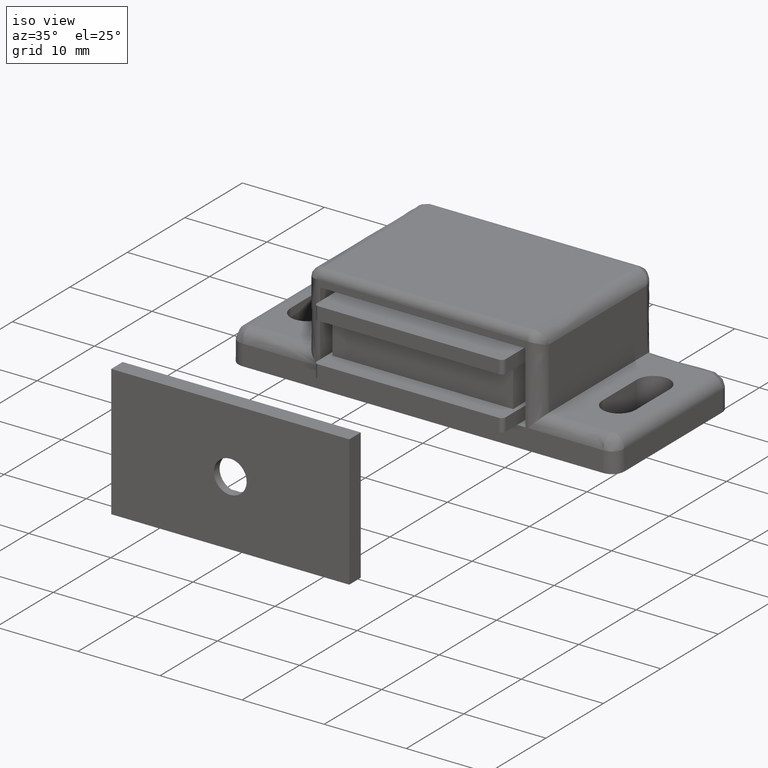
[diagram: clean part render]
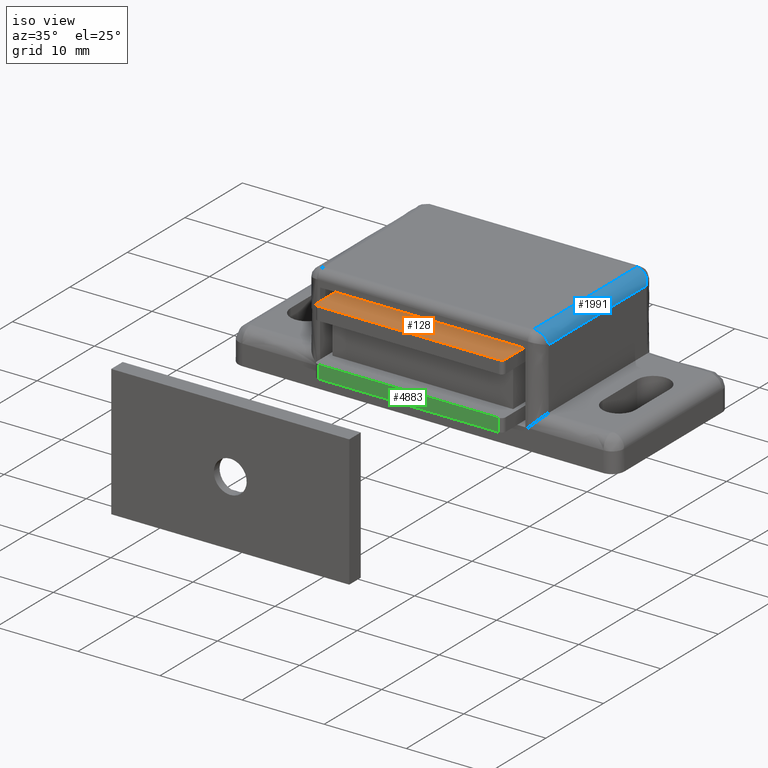
[diagram: same view with three faces highlighted in distinct colors, each labeled with its STEP entity id]
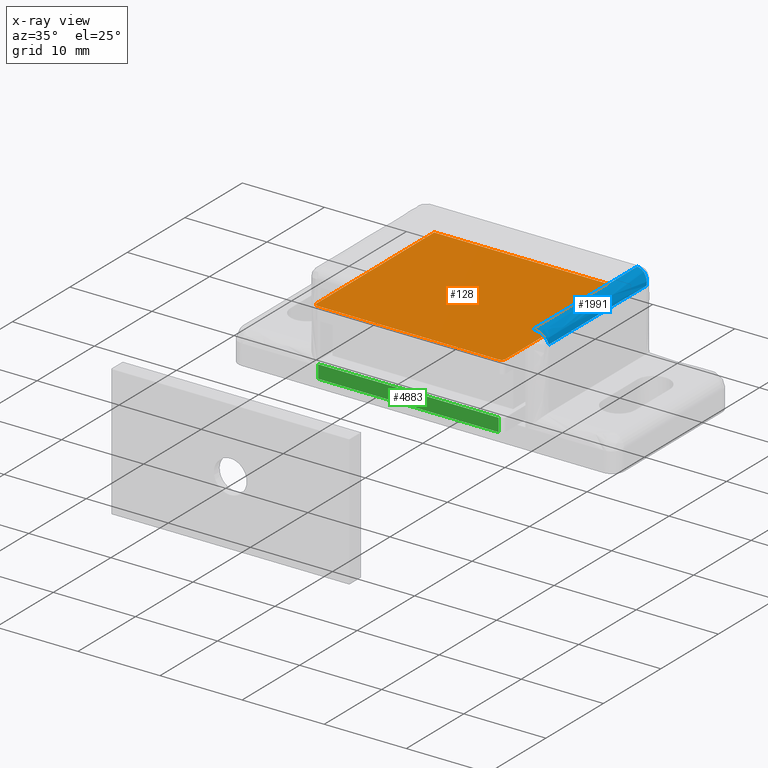
[diagram: x-ray of the same camera — body ghosted, the three highlighted faces saturated]
A machine part, iso view with three faces highlighted in distinct colors.
The next image is the same camera in x-ray (body ghosted, the three faces saturated) — at least one of them is partly hidden behind the body in this view.
Their STEP definitions:

[orange] entity #128 — the highlighted face is a freeform B-spline surface patch.
#67=CARTESIAN_POINT('',(-12.648849955421539,-23.543955059391742,10.500015155273330));
#68=CARTESIAN_POINT('',(12.648850572329611,-23.543955059391742,10.500015155273330));
#69=CARTESIAN_POINT('',(-12.648849955421539,-0.556042380026522,10.500015155273330));
#70=CARTESIAN_POINT('',(12.648850572329611,-0.556042380026522,10.500015155273330));
#71=B_SPLINE_SURFACE_WITH_KNOTS('',1,1,((#67,#69),(#68,#70)),.UNSPECIFIED.,.F.,.F.,.U.,(2,2),(2,2),(0.0,25.297700527751150),(0.0,22.987912679365220),.UNSPECIFIED.);
#72=CARTESIAN_POINT('',(11.500000000000000,-1.599998000000000,10.500015155273370));
#73=VERTEX_POINT('',#72);
#74=CARTESIAN_POINT('',(11.500000000000000,-22.0,10.500015155273370));
#75=VERTEX_POINT('',#74);
#76=CARTESIAN_POINT('',(11.500000000000000,-1.599998000000000,10.500015155273370));
#77=CARTESIAN_POINT('',(11.500000000000000,-22.0,10.500015155273370));
#78=QUASI_UNIFORM_CURVE('',1,(#76,#77),.UNSPECIFIED.,.F.,.U.);
#79=EDGE_CURVE('',#73,#75,#78,.T.);
#80=ORIENTED_EDGE('',*,*,#79,.F.);
#81=CARTESIAN_POINT('',(-11.500000000000000,-1.599998000000000,10.500015155273370));
#82=VERTEX_POINT('',#81);
#83=CARTESIAN_POINT('',(-11.500000000000000,-1.599998000000000,10.500015155273370));
#84=CARTESIAN_POINT('',(11.500000000000000,-1.599998000000000,10.500015155273370));
#85=QUASI_UNIFORM_CURVE('',1,(#83,#84),.UNSPECIFIED.,.F.,.U.);
#86=EDGE_CURVE('',#82,#73,#85,.T.);
#87=ORIENTED_EDGE('',*,*,#86,.F.);
#88=CARTESIAN_POINT('',(-11.500000000000000,-21.999999834193751,10.500015155273370));
#89=VERTEX_POINT('',#88);
#90=CARTESIAN_POINT('',(-11.500000000000000,-21.999999834193751,10.500015155273370));
#91=CARTESIAN_POINT('',(-11.500000000000000,-1.599998000000000,10.500015155273370));
#92=QUASI_UNIFORM_CURVE('',1,(#90,#91),.UNSPECIFIED.,.F.,.U.);
#93=EDGE_CURVE('',#89,#82,#92,.T.);
#94=ORIENTED_EDGE('',*,*,#93,.F.);
#95=CARTESIAN_POINT('',(-11.0,-22.500000000000000,10.500015155273370));
#96=VERTEX_POINT('',#95);
#97=CARTESIAN_POINT('',(-11.0,-22.500000000000000,10.500015155273370));
#98=CARTESIAN_POINT('',(-11.065456960281120,-22.500067458025828,10.500015155273370));
#99=CARTESIAN_POINT('',(-11.184041596524731,-22.476367570200289,10.500015155273370));
#100=CARTESIAN_POINT('',(-11.314526201736189,-22.395946098429249,10.500015155273370));
#101=CARTESIAN_POINT('',(-11.413749183329390,-22.291751328978219,10.500015155273370));
#102=CARTESIAN_POINT('',(-11.482226392474409,-22.163621596878102,10.500015155273390));
#103=CARTESIAN_POINT('',(-11.500024074725429,-22.053178287199390,10.500015155273349));
#104=CARTESIAN_POINT('',(-11.500000000000000,-21.999999834193751,10.500015155273370));
#105=B_SPLINE_CURVE_WITH_KNOTS('',3,(#97,#98,#99,#100,#101,#102,#103,#104),.UNSPECIFIED.,.F.,.U.,(4,1,1,1,1,4),(0.000000108771553,0.196355159770080,0.355894782566613,0.454062625200847,0.625881702589922,0.785418038003662),.UNSPECIFIED.);
#106=EDGE_CURVE('',#96,#89,#105,.T.);
#107=ORIENTED_EDGE('',*,*,#106,.F.);
#108=CARTESIAN_POINT('',(10.999999738200600,-22.500000000000000,10.500015155273370));
#109=VERTEX_POINT('',#108);
#110=CARTESIAN_POINT('',(10.999999738200600,-22.500000000000000,10.500015155273370));
#111=CARTESIAN_POINT('',(-11.0,-22.500000000000000,10.500015155273370));
#112=QUASI_UNIFORM_CURVE('',1,(#110,#111),.UNSPECIFIED.,.F.,.U.);
#113=EDGE_CURVE('',#109,#96,#112,.T.);
#114=ORIENTED_EDGE('',*,*,#113,.F.);
#115=CARTESIAN_POINT('',(11.500000000000000,-22.0,10.500015155273370));
#116=CARTESIAN_POINT('',(11.500069079991080,-22.065465084910041,10.500015155273379));
#117=CARTESIAN_POINT('',(11.480429810925060,-22.163573645632830,10.500015155273370));
#118=CARTESIAN_POINT('',(11.408744263883410,-22.297715740052720,10.500015155273379));
#119=CARTESIAN_POINT('',(11.315699710927570,-22.397883782226490,10.500015155273370));
#120=CARTESIAN_POINT('',(11.171777584930510,-22.479403591828309,10.500015155273379));
#121=CARTESIAN_POINT('',(11.061364516684881,-22.500053660265468,10.500015155273349));
#122=CARTESIAN_POINT('',(10.999999738200600,-22.500000000000000,10.500015155273370));
#123=B_SPLINE_CURVE_WITH_KNOTS('',3,(#115,#116,#117,#118,#119,#120,#121,#122),.UNSPECIFIED.,.F.,.U.,(4,1,1,1,1,4),(0.000000108774715,0.196355183772896,0.294537850330567,0.454062680699287,0.601336828649441,0.785418134004014),.UNSPECIFIED.);
#124=EDGE_CURVE('',#75,#109,#123,.T.);
#125=ORIENTED_EDGE('',*,*,#124,.F.);
#126=EDGE_LOOP('',(#80,#87,#94,#107,#114,#125));
#127=FACE_OUTER_BOUND('',#126,.T.);
#128=ADVANCED_FACE('',(#127),#71,.T.);

[blue] entity #1991 — the highlighted face is a freeform B-spline surface patch.
#876=CARTESIAN_POINT('',(12.800003000000000,-19.0,13.0));
#877=VERTEX_POINT('',#876);
#883=CARTESIAN_POINT('',(12.800003000000000,-1.0,13.0));
#884=VERTEX_POINT('',#883);
#885=CARTESIAN_POINT('',(12.800003000000000,-19.0,13.0));
#886=CARTESIAN_POINT('',(12.800003000000000,-1.0,13.0));
#887=QUASI_UNIFORM_CURVE('',1,(#885,#886),.UNSPECIFIED.,.F.,.U.);
#888=EDGE_CURVE('',#877,#884,#887,.T.);
#1871=CARTESIAN_POINT('',(14.300003000000000,-18.500000000000000,11.500000000000000));
#1872=VERTEX_POINT('',#1871);
#1886=CARTESIAN_POINT('',(14.300003000000000,-18.500000000000000,11.500000000000000));
#1887=CARTESIAN_POINT('',(14.299999973238110,-18.513950339718079,11.541851019154260));
#1888=CARTESIAN_POINT('',(14.298028116812249,-18.529895176850300,11.589685530550989));
#1889=CARTESIAN_POINT('',(14.293057665028870,-18.547763226853640,11.643289680560910));
#1890=CARTESIAN_POINT('',(14.290802518931130,-18.555704369266049,11.667113107798160));
#1891=CARTESIAN_POINT('',(14.276470185192551,-18.595313468167390,11.785940404502000));
#1892=CARTESIAN_POINT('',(14.227774999067609,-18.663695030027569,11.991085090082970));
#1893=CARTESIAN_POINT('',(14.113789527889191,-18.746253632787830,12.238760898363450));
#1894=CARTESIAN_POINT('',(13.934699676536400,-18.833366404220129,12.500099212660540));
#1895=CARTESIAN_POINT('',(13.680397995933021,-18.912523884391369,12.737571653173919));
#1896=CARTESIAN_POINT('',(13.278794378621820,-18.981896836202861,12.945690508608660));
#1897=CARTESIAN_POINT('',(12.976541189184470,-19.000065360654080,13.000196081962089));
#1898=CARTESIAN_POINT('',(12.800003000000000,-19.0,13.0));
#1899=B_SPLINE_CURVE_WITH_KNOTS('',3,(#1886,#1887,#1888,#1889,#1890,#1891,#1892,#1893,#1894,#1895,#1896,#1897,#1898),.UNSPECIFIED.,.F.,.U.,(4,1,1,1,1,1,1,1,1,1,4),(-0.000001335268512,0.132346248915900,0.151255800875144,0.170165352834390,0.207984441400341,0.529450959526242,0.832006295026341,1.058905736188100,1.512720138211598,1.890907378022387,2.420357474074288),.UNSPECIFIED.);
#1900=EDGE_CURVE('',#1872,#877,#1899,.T.);
#1950=CARTESIAN_POINT('',(12.734573918952000,-0.550000000000000,12.998572332372790));
#1951=CARTESIAN_POINT('',(12.734573918952000,-19.461250000000000,12.998572332372790));
#1952=CARTESIAN_POINT('',(14.414093396688553,-0.549999999999999,13.071901736403976));
#1953=CARTESIAN_POINT('',(14.414093396688553,-19.461250000000003,13.071901736403976));
#1954=CARTESIAN_POINT('',(14.296317369847873,-0.550000000000000,11.394912861934714));
#1955=CARTESIAN_POINT('',(14.296317369847873,-19.461249999999996,11.394912861934714));
#1963=(BOUNDED_SURFACE()B_SPLINE_SURFACE(1,2,((#1950,#1952,#1954),(#1951,#1953,#1955)),.UNSPECIFIED.,.F.,.F.,.U.)B_SPLINE_SURFACE_WITH_KNOTS((2,2),(3,3),(0.0,18.911249999999999),(0.0,2.687613809762977),.UNSPECIFIED.)GEOMETRIC_REPRESENTATION_ITEM()RATIONAL_B_SPLINE_SURFACE(((1.0,0.664513898535122,0.996233561259061),(1.0,0.664513898535122,0.996233561259061)))REPRESENTATION_ITEM('')SURFACE());
#1964=CARTESIAN_POINT('',(14.300003000000000,-1.500000000000000,11.500000000000000));
#1965=VERTEX_POINT('',#1964);
#1966=CARTESIAN_POINT('',(14.300003000000000,-1.500000000000000,11.500000000000000));
#1967=CARTESIAN_POINT('',(14.299999983006339,-1.486049577467508,11.541851267597499));
#1968=CARTESIAN_POINT('',(14.298028108572300,-1.470104909221612,11.589685272335119));
#1969=CARTESIAN_POINT('',(14.293057670670080,-1.452236758024176,11.643289725927479));
#1970=CARTESIAN_POINT('',(14.290786514226120,-1.444295454676580,11.667113635970249));
#1971=CARTESIAN_POINT('',(14.268009247339290,-1.380921981668249,11.857234054995329));
#1972=CARTESIAN_POINT('',(14.182127411185260,-1.289885227684856,12.130344316945390));
#1973=CARTESIAN_POINT('',(13.972752615698180,-1.182518440549315,12.452444678352130));
#1974=CARTESIAN_POINT('',(13.728858136053750,-1.100897568138671,12.697307295583959));
#1975=CARTESIAN_POINT('',(13.449188974604869,-1.044933810487245,12.865198568538240));
#1976=CARTESIAN_POINT('',(13.127711350659030,-1.008548529783249,12.974354410650379));
#1977=CARTESIAN_POINT('',(12.926070607613640,-0.999985834138243,13.000042497585110));
#1978=CARTESIAN_POINT('',(12.800003000000000,-1.0,13.0));
#1979=B_SPLINE_CURVE_WITH_KNOTS('',3,(#1966,#1967,#1968,#1969,#1970,#1971,#1972,#1973,#1974,#1975,#1976,#1977,#1978),.UNSPECIFIED.,.F.,.U.,(4,1,1,1,1,1,1,1,1,1,4),(-0.000001335232788,0.132346249498890,0.151255801536347,0.170165353573805,0.207984442296173,0.756367957765236,1.058905740603260,1.399261493057298,1.815269989392344,2.042176959484725,2.420357474074340),.UNSPECIFIED.);
#1980=EDGE_CURVE('',#1965,#884,#1979,.T.);
#1981=ORIENTED_EDGE('',*,*,#1980,.T.);
#1982=ORIENTED_EDGE('',*,*,#888,.F.);
#1983=ORIENTED_EDGE('',*,*,#1900,.F.);
#1984=CARTESIAN_POINT('',(14.300003000000000,-1.500000000000000,11.500000000000000));
#1985=CARTESIAN_POINT('',(14.300003000000000,-18.500000000000000,11.500000000000000));
#1986=QUASI_UNIFORM_CURVE('',1,(#1984,#1985),.UNSPECIFIED.,.F.,.U.);
#1987=EDGE_CURVE('',#1965,#1872,#1986,.T.);
#1988=ORIENTED_EDGE('',*,*,#1987,.F.);
#1989=EDGE_LOOP('',(#1981,#1982,#1983,#1988));
#1990=FACE_OUTER_BOUND('',#1989,.T.);
#1991=ADVANCED_FACE('',(#1990),#1963,.T.);

[green] entity #4883 — the highlighted face is a freeform B-spline surface patch.
#4697=CARTESIAN_POINT('',(10.999999738200600,-22.500000000000000,2.499999999999945));
#4698=VERTEX_POINT('',#4697);
#4710=CARTESIAN_POINT('',(-11.0,-22.500000000000000,2.499999999999945));
#4711=VERTEX_POINT('',#4710);
#4712=CARTESIAN_POINT('',(10.999999738200600,-22.500000000000000,2.499999999999945));
#4713=CARTESIAN_POINT('',(-11.0,-22.500000000000000,2.499999999999945));
#4714=QUASI_UNIFORM_CURVE('',1,(#4712,#4713),.UNSPECIFIED.,.F.,.U.);
#4715=EDGE_CURVE('',#4698,#4711,#4714,.T.);
#4773=CARTESIAN_POINT('',(-11.0,-22.500000000000000,4.100005999999935));
#4774=VERTEX_POINT('',#4773);
#4786=CARTESIAN_POINT('',(10.999999738200600,-22.500000000000000,4.100005999999935));
#4787=VERTEX_POINT('',#4786);
#4788=CARTESIAN_POINT('',(10.999999738200600,-22.500000000000000,4.100005999999935));
#4789=CARTESIAN_POINT('',(-11.0,-22.500000000000000,4.100005999999935));
#4790=QUASI_UNIFORM_CURVE('',1,(#4788,#4789),.UNSPECIFIED.,.F.,.U.);
#4791=EDGE_CURVE('',#4787,#4774,#4790,.T.);
#4858=CARTESIAN_POINT('',(-11.0,-22.500000000000000,4.100005999999935));
#4859=CARTESIAN_POINT('',(-11.0,-22.500000000000000,2.499999999999945));
#4860=QUASI_UNIFORM_CURVE('',1,(#4858,#4859),.UNSPECIFIED.,.F.,.U.);
#4861=EDGE_CURVE('',#4774,#4711,#4860,.T.);
#4868=CARTESIAN_POINT('',(-12.098899944282850,-22.500000000000000,4.179926296598812));
#4869=CARTESIAN_POINT('',(-12.098899944282850,-22.500000000000000,2.420079660485562));
#4870=CARTESIAN_POINT('',(12.098900272569431,-22.500000000000000,4.179926296598812));
#4871=CARTESIAN_POINT('',(12.098900272569431,-22.500000000000000,2.420079660485562));
#4872=B_SPLINE_SURFACE_WITH_KNOTS('',1,1,((#4868,#4870),(#4869,#4871)),.UNSPECIFIED.,.F.,.F.,.U.,(2,2),(2,2),(0.041708334948495,0.958291687403247),(0.0,24.197800216852269),.UNSPECIFIED.);
#4873=ORIENTED_EDGE('',*,*,#4715,.F.);
#4874=CARTESIAN_POINT('',(10.999999738200600,-22.500000000000000,4.100005999999935));
#4875=CARTESIAN_POINT('',(10.999999738200600,-22.500000000000000,2.499999999999945));
#4876=QUASI_UNIFORM_CURVE('',1,(#4874,#4875),.UNSPECIFIED.,.F.,.U.);
#4877=EDGE_CURVE('',#4787,#4698,#4876,.T.);
#4878=ORIENTED_EDGE('',*,*,#4877,.F.);
#4879=ORIENTED_EDGE('',*,*,#4791,.T.);
#4880=ORIENTED_EDGE('',*,*,#4861,.T.);
#4881=EDGE_LOOP('',(#4873,#4878,#4879,#4880));
#4882=FACE_OUTER_BOUND('',#4881,.T.);
#4883=ADVANCED_FACE('',(#4882),#4872,.T.);